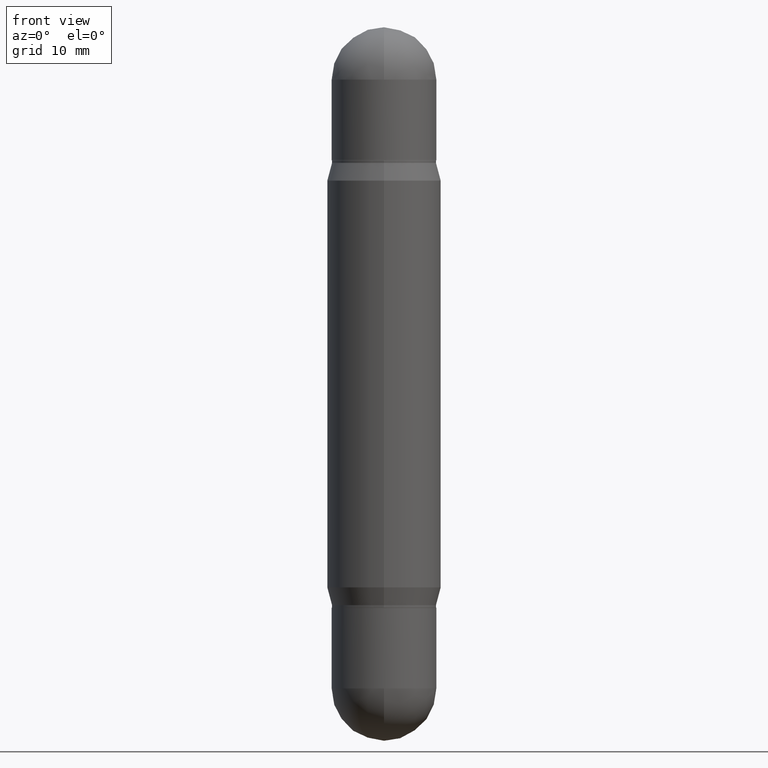
[diagram: clean part render]
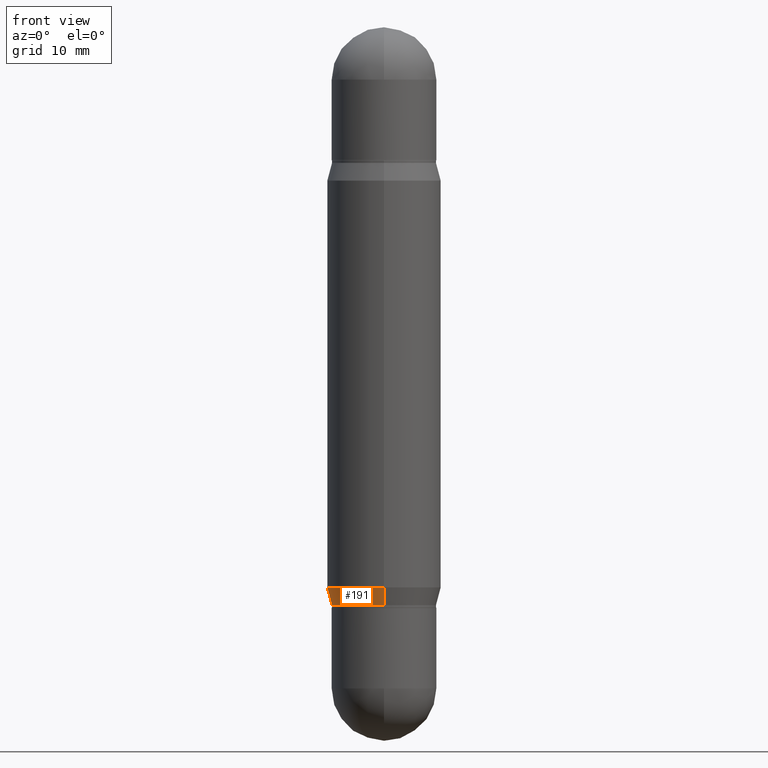
[diagram: same view with one face highlighted and labeled with its STEP entity id]
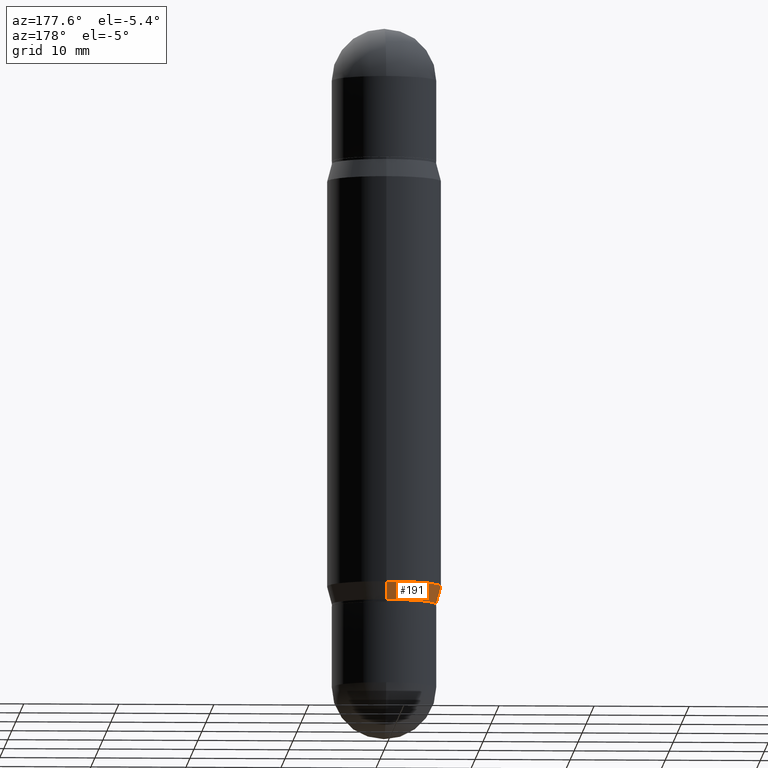
[diagram: same view with one face highlighted and labeled with its STEP entity id]
A machine part, front view. The second image highlights one B-rep face of the part: STEP entity #191.
A second angle (auxiliary view) of the same face is appended — the face is thin or edge-on in the first view.
In plain terms, the highlighted conical surface has half-angle 15 deg.
Its self-contained STEP definition (entity closure, byte-faithful):
#7 = CARTESIAN_POINT ( 'NONE',  ( 5.844343650892796996E-29, -8.356298041119984560E-15, -2.391599999999999060 ) ) ;
#20 = ORIENTED_EDGE ( 'NONE', *, *, #456, .F. ) ;
#54 = CIRCLE ( 'NONE', #691, 0.2361999999999999933 ) ;
#67 = VECTOR ( 'NONE', #513, 39.37007874015748854 ) ;
#144 = CIRCLE ( 'NONE', #564, 0.2165500000000000203 ) ;
#191 = ADVANCED_FACE ( 'NONE', ( #982 ), #581, .T. ) ;
#204 = LINE ( 'NONE', #1064, #1007 ) ;
#227 = ORIENTED_EDGE ( 'NONE', *, *, #628, .T. ) ;
#299 = DIRECTION ( 'NONE',  ( -1.807323732225339211E-15, -0.2588190451025194627, 0.9659258262890687563 ) ) ;
#324 = DIRECTION ( 'NONE',  ( -6.982962677686265922E-15, -1.000000000000000000, 3.469747663417777397E-15 ) ) ;
#431 = CARTESIAN_POINT ( 'NONE',  ( 5.665135688342295588E-29, -8.100064794776730323E-15, -2.318265201631271477 ) ) ;
#456 = EDGE_CURVE ( 'NONE', #727, #1086, #1113, .T. ) ;
#462 = CARTESIAN_POINT ( 'NONE',  ( 1.620449627073671761E-15, 0.2361999999999919164, -2.318265201631272365 ) ) ;
#465 = DIRECTION ( 'NONE',  ( -6.982962677686265133E-15, -1.000000000000000000, 3.784596620176766988E-15 ) ) ;
#497 = ORIENTED_EDGE ( 'NONE', *, *, #1013, .F. ) ;
#513 = DIRECTION ( 'NONE',  ( 1.839019923739608598E-15, 0.2588190451025261241, 0.9659258262890667579 ) ) ;
#564 = AXIS2_PLACEMENT_3D ( 'NONE', #968, #617, #806 ) ;
#581 = CONICAL_SURFACE ( 'NONE', #636, 0.2165500000000000203, 0.2617993877991515173 ) ;
#590 = CARTESIAN_POINT ( 'NONE',  ( -1.649375784469439333E-15, -0.2362000000000080979, -2.318265201631270589 ) ) ;
#591 = CARTESIAN_POINT ( 'NONE',  ( 1.538680294288555275E-15, 0.2165499999999916381, -2.391599999999999948 ) ) ;
#617 = DIRECTION ( 'NONE',  ( -2.443696124307074357E-29, 3.494019920187317329E-15, 1.000000000000000000 ) ) ;
#628 = EDGE_CURVE ( 'NONE', #727, #826, #144, .T. ) ;
#636 = AXIS2_PLACEMENT_3D ( 'NONE', #7, #880, #465 ) ;
#640 = CARTESIAN_POINT ( 'NONE',  ( 1.538680294288555472E-15, 0.2165499999999916381, -2.391599999999999948 ) ) ;
#691 = AXIS2_PLACEMENT_3D ( 'NONE', #431, #774, #324 ) ;
#727 = VERTEX_POINT ( 'NONE', #640 ) ;
#742 = CARTESIAN_POINT ( 'NONE',  ( -1.512160567852902447E-15, -0.2165500000000083747, -2.391599999999998172 ) ) ;
#766 = EDGE_CURVE ( 'NONE', #826, #928, #204, .T. ) ;
#774 = DIRECTION ( 'NONE',  ( -2.443696124307074357E-29, 3.494019920187317329E-15, 1.000000000000000000 ) ) ;
#806 = DIRECTION ( 'NONE',  ( -6.982962677686265133E-15, -1.000000000000000000, 3.784596620176766988E-15 ) ) ;
#826 = VERTEX_POINT ( 'NONE', #742 ) ;
#830 = EDGE_LOOP ( 'NONE', ( #20, #227, #1030, #497 ) ) ;
#880 = DIRECTION ( 'NONE',  ( -2.443696124307074357E-29, 3.494019920187317329E-15, 1.000000000000000000 ) ) ;
#928 = VERTEX_POINT ( 'NONE', #590 ) ;
#968 = CARTESIAN_POINT ( 'NONE',  ( 5.844343650892796996E-29, -8.356298041119984560E-15, -2.391599999999999060 ) ) ;
#982 = FACE_OUTER_BOUND ( 'NONE', #830, .T. ) ;
#1007 = VECTOR ( 'NONE', #299, 39.37007874015747433 ) ;
#1013 = EDGE_CURVE ( 'NONE', #1086, #928, #54, .T. ) ;
#1030 = ORIENTED_EDGE ( 'NONE', *, *, #766, .T. ) ;
#1064 = CARTESIAN_POINT ( 'NONE',  ( -1.512160567852902447E-15, -0.2165500000000083747, -2.391599999999998172 ) ) ;
#1086 = VERTEX_POINT ( 'NONE', #462 ) ;
#1113 = LINE ( 'NONE', #591, #67 ) ;